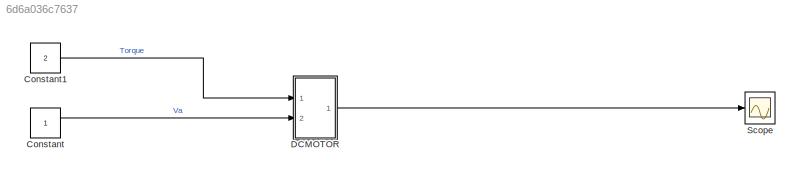
MODEL slx_6d6a036c7637
KIND model
CONFIG AbsTol = auto
CONFIG EnableMultiTasking = off
CONFIG FixedStep = auto
CONFIG MaxStep = auto
CONFIG MinStep = auto
CONFIG RelTol = 1e-3
CONFIG SampleTimeConstraint = Unconstrained
CONFIG SolverName = ode4
CONFIG StartTime = 0.0
CONFIG StopTime = 10.0
BLOCK [Constant] Constant
BLOCK [Constant] Constant1
  Value = 2
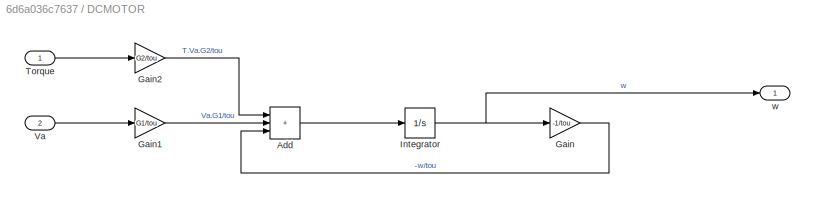
BLOCK [SubSystem] DCMOTOR
  Ports = [2, 1]
  RequestExecContextInheritance = off
BLOCK [Sum] DCMOTOR/Add
  IconShape = rectangular
  Inputs = +++
  Ports = [3, 1]
BLOCK [Gain] DCMOTOR/Gain
  Gain = -1/tou
BLOCK [Gain] DCMOTOR/Gain1
  Gain = G1/tou
BLOCK [Gain] DCMOTOR/Gain2
  Gain = G2/tou
BLOCK [Integrator] DCMOTOR/Integrator
  Ports = [1, 1]
BLOCK [Inport] DCMOTOR/Torque
BLOCK [Inport] DCMOTOR/Va
  Port = 2
BLOCK [Outport] DCMOTOR/w
BLOCK [Scope] Scope
  Floating = off
  NumInputPorts = 1
  Ports = [1]
  ScopeSpecificationString = Simulink.scopes.TimeScopeBlockCfg('CurrentConfiguration', extmgr.ConfigurationSet(extmgr.Configuration('Core','General UI',true),extmgr.Configuration('Core','Source UI',true),extmgr.Configuration('Sources','WiredSimulink',true),extmgr.Configuration('Visuals','Time Domain',true),extmgr.Configuration('Tools','Plot Navigation',true),extmgr.Configuration('Tools','Measurements',true)),'Version','2022a'...<+1ch>
LINE Constant1:1 -> DCMOTOR:1
LINE Constant:1 -> DCMOTOR:2
LINE DCMOTOR/Add:1 -> DCMOTOR/Integrator:1
LINE DCMOTOR/Gain1:1 -> DCMOTOR/Add:2
LINE DCMOTOR/Gain2:1 -> DCMOTOR/Add:1
LINE DCMOTOR/Gain:1 -> DCMOTOR/Add:3
NET DCMOTOR/Integrator:1 -> DCMOTOR/Gain:1, DCMOTOR/w:1
LINE DCMOTOR/Torque:1 -> DCMOTOR/Gain2:1
LINE DCMOTOR/Va:1 -> DCMOTOR/Gain1:1
LINE DCMOTOR:1 -> Scope:1
note: NET lines group one-source signal fan-out (src -> all destinations, sorted); 1:1 wires keep LINE
